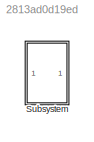
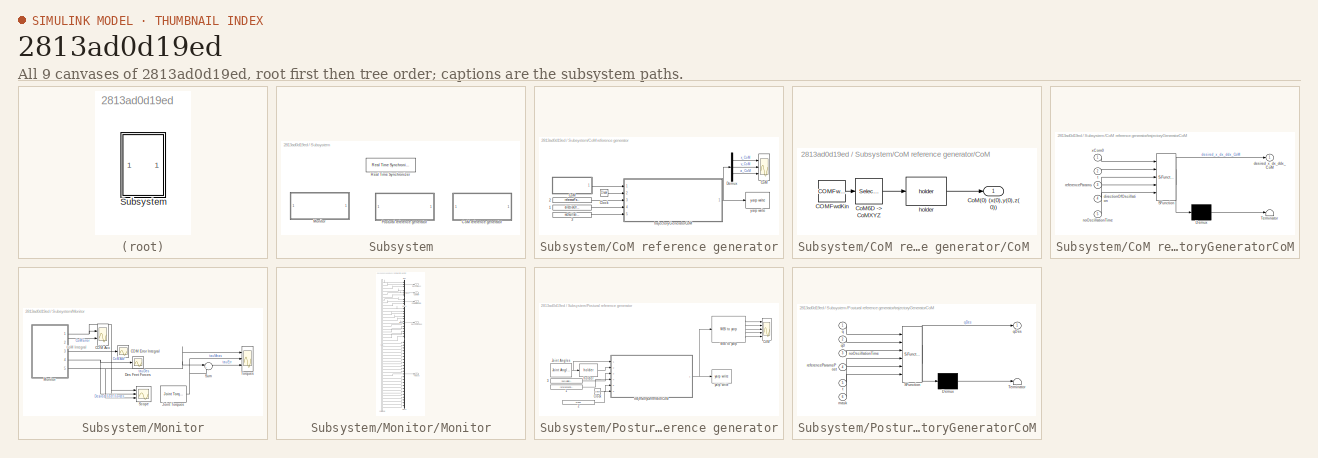
[diagram: thumbnail index - all 9 canvases of the model, root first then tree order]
MODEL slx_2813ad0d19ed
KIND model
CONFIG InitFcn = init_generatorOfReferences;
BLOCK [SubSystem] Subsystem
  Ports = []
  RequestExecContextInheritance = off
BLOCK [SubSystem] Subsystem/CoM reference generator
  Ports = []
  RequestExecContextInheritance = off
BLOCK [Constant] Subsystem/CoM reference generator/ 1
  Value = directionOfOscillation
BLOCK [Constant] Subsystem/CoM reference generator/ 2
  Value = referenceParamsCoM
BLOCK [Constant] Subsystem/CoM reference generator/ 3
  Value = noOscillationTime
BLOCK [Clock] Subsystem/CoM reference generator/Clock
BLOCK [Scope] Subsystem/CoM reference generator/CoM
  Floating = off
  LegendLocations = 0.90006     0.89787    0.064042    0.053744\n0.90006     0.58361    0.064042    0.053744\n0.90006     0.26832    0.064205    0.053744
  LimitDataPoints = off
  NumInputPorts = 3
  Ports = [3]
  ShowLegends = on
  YMax = 5~5~5
  YMin = -5~-5~-5
BLOCK [SubSystem] Subsystem/CoM reference generator/CoM 
  Ports = [0, 1]
  RequestExecContextInheritance = off
BLOCK [Reference] Subsystem/CoM reference generator/CoM /COMFwdKin   REF=WBCLibrary/wholeBodyModel/Forward Kinematics/COMFwdKin 
  Ports = [0, 1]
  SourceBlock = WBCLibrary/wholeBodyModel/Forward Kinematics/COMFwdKin
  SourceType = Center of Mass Forward Kinematics
  localName = localName
  robotName = robotName
BLOCK [Outport] Subsystem/CoM reference generator/CoM /CoM(0) (x(0),y(0),z(0))
  IconDisplay = Port number
BLOCK [Selector] Subsystem/CoM reference generator/CoM /CoM6D -> CoMXYZ
  Indices = [1 2 3]
  InputPortWidth = 7
  Ports = [1, 1]
BLOCK [Reference] Subsystem/CoM reference generator/CoM /holder   REF=WBCLibrary/Utilities/holder

  Ports = [1, 1]
  SourceBlock = WBCLibrary/Utilities/holder
  SourceType = Holder
BLOCK [Demux] Subsystem/CoM reference generator/Demux
  DisplayOption = bar
  Outputs = 3
  Ports = [1, 3]
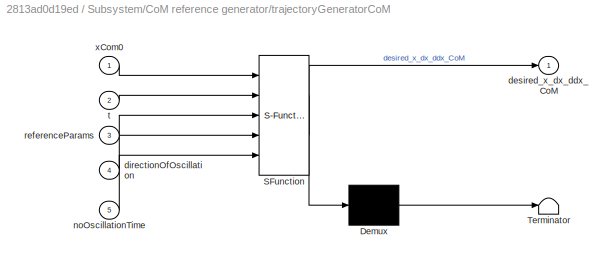
BLOCK [SubSystem] Subsystem/CoM reference generator/trajectoryGeneratorCoM
  ErrorFcn = Stateflow.Translate.translate
  PermitHierarchicalResolution = ExplicitOnly
  Ports = [5, 1]
  RequestExecContextInheritance = off
  SFBlockType = MATLAB Function
  TreatAsAtomicUnit = on
BLOCK [Demux] Subsystem/CoM reference generator/trajectoryGeneratorCoM/ Demux 
  Outputs = 1
  Ports = [1, 1]
BLOCK [S-Function] Subsystem/CoM reference generator/trajectoryGeneratorCoM/ SFunction 
  EnableBusSupport = on
  FunctionName = sf_sfun
  PortCounts = [5 2]
  Ports = [5, 2]
  Tag = Stateflow S-Function generatorOfReferences 1
BLOCK [Terminator] Subsystem/CoM reference generator/trajectoryGeneratorCoM/ Terminator 
BLOCK [Outport] Subsystem/CoM reference generator/trajectoryGeneratorCoM/desired_x_dx_ddx_CoM
  IconDisplay = Port number
BLOCK [Inport] Subsystem/CoM reference generator/trajectoryGeneratorCoM/directionOfOscillation
  IconDisplay = Port number
  Port = 4
BLOCK [Inport] Subsystem/CoM reference generator/trajectoryGeneratorCoM/noOscillationTime
  IconDisplay = Port number
  Port = 5
BLOCK [Inport] Subsystem/CoM reference generator/trajectoryGeneratorCoM/referenceParams
  IconDisplay = Port number
  Port = 3
BLOCK [Inport] Subsystem/CoM reference generator/trajectoryGeneratorCoM/t
  IconDisplay = Port number
  Port = 2
BLOCK [Inport] Subsystem/CoM reference generator/trajectoryGeneratorCoM/xCom0
  IconDisplay = Port number
BLOCK [Reference] Subsystem/CoM reference generator/yarp write  REF=WBCLibrary/Utilities/yarp write
  Ports = [1]
  SourceBlock = WBCLibrary/Utilities/yarp write
  port_name = outputPortCoM
BLOCK [SubSystem] Subsystem/Monitor
  Commented = on
  Ports = []
  RequestExecContextInheritance = off
BLOCK [Scope] Subsystem/Monitor/COM Acc
  DataFormat = StructureWithTime
  Floating = off
  LimitDataPoints = off
  NumInputPorts = 2
  Ports = [2]
  SampleTime = 0
  SaveName = ScopeData5
  ShowLegends = on
  YMax = 0.2~0.04
  YMin = -0.4~-0.02
BLOCK [Scope] Subsystem/Monitor/COM Error Integral
  DataFormat = StructureWithTime
  Floating = off
  NumInputPorts = 1
  Ports = [1]
  SampleTime = 0
  SaveName = ScopeData4
  ShowLegends = off
  YMax = 0.1
  YMin = -0.7
BLOCK [Scope] Subsystem/Monitor/Des Feet Forces
  DataFormat = StructureWithTime
  Floating = off
  NumInputPorts = 1
  Ports = [1]
  SampleTime = 0
  SaveName = ScopeData2
  ShowLegends = off
  TimeRange = 10
  YMax = 120
  YMin = -10
BLOCK [Reference] Subsystem/Monitor/Joint Torques  REF=WBCLibrary/wholeBodyStates/Joint Torques
  Ports = [0, 1]
  SourceBlock = WBCLibrary/wholeBodyStates/Joint Torques
  SourceType = Joint Torques
  localName = localName
  robotName = robotName
BLOCK [SubSystem] Subsystem/Monitor/Monitor
  Ports = [0, 5]
  RequestExecContextInheritance = off
BLOCK [Outport] Subsystem/Monitor/Monitor/COM error
  IconDisplay = Port number
  Port = 2
BLOCK [Outport] Subsystem/Monitor/Monitor/COM error integral
  IconDisplay = Port number
  Port = 3
BLOCK [Outport] Subsystem/Monitor/Monitor/Des COM Acc
  IconDisplay = Port number
BLOCK [Outport] Subsystem/Monitor/Monitor/Des Feet Forces
  IconDisplay = Port number
  Port = 4
BLOCK [Mux] Subsystem/Monitor/Monitor/Mux
  DisplayOption = bar
  Inputs = 3
  Ports = [3, 1]
BLOCK [Mux] Subsystem/Monitor/Monitor/Mux1
  DisplayOption = bar
  Inputs = 3
  Ports = [3, 1]
BLOCK [Mux] Subsystem/Monitor/Monitor/Mux2
  DisplayOption = bar
  Inputs = 12
  Ports = [12, 1]
BLOCK [Mux] Subsystem/Monitor/Monitor/Mux3
  DisplayOption = bar
  Inputs = 23
  Ports = [23, 1]
BLOCK [Mux] Subsystem/Monitor/Monitor/Mux4
  DisplayOption = bar
  Inputs = 3
  Ports = [3, 1]
BLOCK [Outport] Subsystem/Monitor/Monitor/Torques
  IconDisplay = Port number
  Port = 5
BLOCK [Reference] Subsystem/Monitor/Monitor/yarp read  REF=WBCLibrary/Utilities/yarp read
  Ports = [0, 44]
  SourceBlock = WBCLibrary/Utilities/yarp read
  blocking = off
  from = ['/torqueBalancing/monitor:o']
  num = 44
  timestamp = off
  to = '...'
BLOCK [Scope] Subsystem/Monitor/Scope
  Floating = off
  LegendLocations = 0.79652     0.89787     0.15163    0.053744\n0.70508     0.43396     0.24188     0.20132\n0.79807   -0.010438     0.15009      0.3325
  LimitDataPoints = off
  NumInputPorts = 3
  Ports = [3]
  SaveName = ScopeData1
  ShowLegends = on
  YMax = 0.3~160~10
  YMin = -0.4~-20~-20
BLOCK [Sum] Subsystem/Monitor/Sum
  IconShape = round
  InputSameDT = off
  Inputs = |+-
  OutDataTypeStr = Inherit: Inherit via internal rule
  Ports = [2, 1]
  SaturateOnIntegerOverflow = off
BLOCK [Scope] Subsystem/Monitor/Torques
  DataFormat = StructureWithTime
  Floating = off
  LimitDataPoints = off
  NumInputPorts = 3
  Ports = [3]
  SampleTime = 0
  SaveName = ScopeData3
  ShowLegends = off
  YMax = 1~5~5
  YMin = -1~-5~-5
BLOCK [SubSystem] Subsystem/Postural reference generator
  Commented = on
  Ports = []
  RequestExecContextInheritance = off
BLOCK [Constant] Subsystem/Postural reference generator/ 1
  Value = referenceParamsPost
BLOCK [Constant] Subsystem/Postural reference generator/ 2
  Value = mask
BLOCK [Constant] Subsystem/Postural reference generator/ 3
  Value = noOscillationTime
BLOCK [Clock] Subsystem/Postural reference generator/Clock
BLOCK [Scope] Subsystem/Postural reference generator/CoM
  Floating = off
  LegendLocations = 0.88654     0.89488    0.092204      0.0538\n0.88654     0.69054    0.092204    0.070215\n0.88654     0.50258    0.092204    0.070215\n0.88654     0.28185    0.092204     0.10304\n0.88654    0.092859    0.092204     0.10304
  LimitDataPoints = off
  NumInputPorts = 5
  Ports = [5]
  ShowLegends = on
  YMax = 5~5~5~5~5
  YMin = -5~-5~-5~-5~-5
BLOCK [Reference] Subsystem/Postural reference generator/Joint Angles  REF=WBCLibrary/wholeBodyStates/Joint Angles
  Ports = [0, 1]
  SourceBlock = WBCLibrary/wholeBodyStates/Joint Angles
  SourceType = Joint Angles
  localName = localName
  robotName = robotName
BLOCK [Reference] Subsystem/Postural reference generator/WBI to yarp  REF=WBCLibrary/Utilities/WBI to yarp
  Ports = [1, 5]
  SourceBlock = WBCLibrary/Utilities/WBI to yarp
  SourceType = WBI to YARP
BLOCK [Reference] Subsystem/Postural reference generator/holder   REF=WBCLibrary/Utilities/holder

  Ports = [1, 1]
  SourceBlock = WBCLibrary/Utilities/holder
  SourceType = Holder
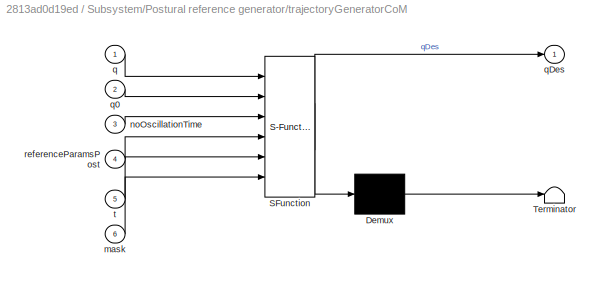
BLOCK [SubSystem] Subsystem/Postural reference generator/trajectoryGeneratorCoM
  ErrorFcn = Stateflow.Translate.translate
  PermitHierarchicalResolution = ExplicitOnly
  Ports = [6, 1]
  RequestExecContextInheritance = off
  SFBlockType = MATLAB Function
  TreatAsAtomicUnit = on
BLOCK [Demux] Subsystem/Postural reference generator/trajectoryGeneratorCoM/ Demux 
  Outputs = 1
  Ports = [1, 1]
BLOCK [S-Function] Subsystem/Postural reference generator/trajectoryGeneratorCoM/ SFunction 
  EnableBusSupport = on
  FunctionName = sf_sfun
  PortCounts = [6 2]
  Ports = [6, 2]
  Tag = Stateflow S-Function generatorOfReferences 2
BLOCK [Terminator] Subsystem/Postural reference generator/trajectoryGeneratorCoM/ Terminator 
BLOCK [Inport] Subsystem/Postural reference generator/trajectoryGeneratorCoM/mask
  IconDisplay = Port number
  Port = 6
BLOCK [Inport] Subsystem/Postural reference generator/trajectoryGeneratorCoM/noOscillationTime
  IconDisplay = Port number
  Port = 3
BLOCK [Inport] Subsystem/Postural reference generator/trajectoryGeneratorCoM/q
  IconDisplay = Port number
BLOCK [Inport] Subsystem/Postural reference generator/trajectoryGeneratorCoM/q0
  IconDisplay = Port number
  Port = 2
BLOCK [Outport] Subsystem/Postural reference generator/trajectoryGeneratorCoM/qDes
  IconDisplay = Port number
BLOCK [Inport] Subsystem/Postural reference generator/trajectoryGeneratorCoM/referenceParamsPost
  IconDisplay = Port number
  Port = 4
BLOCK [Inport] Subsystem/Postural reference generator/trajectoryGeneratorCoM/t
  IconDisplay = Port number
  Port = 5
BLOCK [Reference] Subsystem/Postural reference generator/yarp write  REF=WBCLibrary/Utilities/yarp write
  Ports = [1]
  SourceBlock = WBCLibrary/Utilities/yarp write
  port_name = outputPortPostural
BLOCK [Reference] Subsystem/Real Time Synchronizer  REF=WBCLibrary/Utilities/Real Time Synchronizer
  Ports = []
  Priority = -10
  SourceBlock = WBCLibrary/Utilities/Real Time Synchronizer
  threadPeriod = Ts
ANNOTATION Subsystem/Monitor: CoM Integral
LINE Subsystem/CoM reference generator/ 1:1 -> Subsystem/CoM reference generator/trajectoryGeneratorCoM:4
LINE Subsystem/CoM reference generator/ 2:1 -> Subsystem/CoM reference generator/trajectoryGeneratorCoM:3
LINE Subsystem/CoM reference generator/ 3:1 -> Subsystem/CoM reference generator/trajectoryGeneratorCoM:5
LINE Subsystem/CoM reference generator/Clock:1 -> Subsystem/CoM reference generator/trajectoryGeneratorCoM:2
LINE Subsystem/CoM reference generator/CoM /COMFwdKin :1 -> Subsystem/CoM reference generator/CoM /CoM6D -> CoMXYZ:1
LINE Subsystem/CoM reference generator/CoM /CoM6D -> CoMXYZ:1 -> Subsystem/CoM reference generator/CoM /holder :1
LINE Subsystem/CoM reference generator/CoM /holder :1 -> Subsystem/CoM reference generator/CoM /CoM(0) (x(0),y(0),z(0)):1
LINE Subsystem/CoM reference generator/CoM :1 -> Subsystem/CoM reference generator/trajectoryGeneratorCoM:1
LINE Subsystem/CoM reference generator/Demux:1 -> Subsystem/CoM reference generator/CoM:1
LINE Subsystem/CoM reference generator/Demux:2 -> Subsystem/CoM reference generator/CoM:2
LINE Subsystem/CoM reference generator/Demux:3 -> Subsystem/CoM reference generator/CoM:3
NET Subsystem/CoM reference generator/trajectoryGeneratorCoM:1 -> Subsystem/CoM reference generator/Demux:1, Subsystem/CoM reference generator/yarp write:1
NET Subsystem/Monitor/Joint Torques:1 -> Subsystem/Monitor/Sum:2, Subsystem/Monitor/Torques:2
LINE Subsystem/Monitor/Monitor/Mux1:1 -> Subsystem/Monitor/Monitor/COM error:1
LINE Subsystem/Monitor/Monitor/Mux2:1 -> Subsystem/Monitor/Monitor/Des Feet Forces:1
LINE Subsystem/Monitor/Monitor/Mux3:1 -> Subsystem/Monitor/Monitor/Torques:1
LINE Subsystem/Monitor/Monitor/Mux4:1 -> Subsystem/Monitor/Monitor/COM error integral:1
LINE Subsystem/Monitor/Monitor/Mux:1 -> Subsystem/Monitor/Monitor/Des COM Acc:1
LINE Subsystem/Monitor/Monitor/yarp read:1 -> Subsystem/Monitor/Monitor/Mux:1
LINE Subsystem/Monitor/Monitor/yarp read:10 -> Subsystem/Monitor/Monitor/Mux2:1
LINE Subsystem/Monitor/Monitor/yarp read:11 -> Subsystem/Monitor/Monitor/Mux2:2
LINE Subsystem/Monitor/Monitor/yarp read:12 -> Subsystem/Monitor/Monitor/Mux2:3
LINE Subsystem/Monitor/Monitor/yarp read:13 -> Subsystem/Monitor/Monitor/Mux2:4
LINE Subsystem/Monitor/Monitor/yarp read:14 -> Subsystem/Monitor/Monitor/Mux2:5
LINE Subsystem/Monitor/Monitor/yarp read:15 -> Subsystem/Monitor/Monitor/Mux2:6
LINE Subsystem/Monitor/Monitor/yarp read:16 -> Subsystem/Monitor/Monitor/Mux2:7
LINE Subsystem/Monitor/Monitor/yarp read:17 -> Subsystem/Monitor/Monitor/Mux2:8
LINE Subsystem/Monitor/Monitor/yarp read:18 -> Subsystem/Monitor/Monitor/Mux2:9
LINE Subsystem/Monitor/Monitor/yarp read:19 -> Subsystem/Monitor/Monitor/Mux2:10
LINE Subsystem/Monitor/Monitor/yarp read:2 -> Subsystem/Monitor/Monitor/Mux:2
LINE Subsystem/Monitor/Monitor/yarp read:20 -> Subsystem/Monitor/Monitor/Mux2:11
LINE Subsystem/Monitor/Monitor/yarp read:21 -> Subsystem/Monitor/Monitor/Mux2:12
LINE Subsystem/Monitor/Monitor/yarp read:22 -> Subsystem/Monitor/Monitor/Mux3:1
LINE Subsystem/Monitor/Monitor/yarp read:23 -> Subsystem/Monitor/Monitor/Mux3:2
LINE Subsystem/Monitor/Monitor/yarp read:24 -> Subsystem/Monitor/Monitor/Mux3:3
LINE Subsystem/Monitor/Monitor/yarp read:25 -> Subsystem/Monitor/Monitor/Mux3:4
LINE Subsystem/Monitor/Monitor/yarp read:26 -> Subsystem/Monitor/Monitor/Mux3:5
LINE Subsystem/Monitor/Monitor/yarp read:27 -> Subsystem/Monitor/Monitor/Mux3:6
LINE Subsystem/Monitor/Monitor/yarp read:28 -> Subsystem/Monitor/Monitor/Mux3:7
LINE Subsystem/Monitor/Monitor/yarp read:29 -> Subsystem/Monitor/Monitor/Mux3:8
LINE Subsystem/Monitor/Monitor/yarp read:3 -> Subsystem/Monitor/Monitor/Mux:3
LINE Subsystem/Monitor/Monitor/yarp read:30 -> Subsystem/Monitor/Monitor/Mux3:9
LINE Subsystem/Monitor/Monitor/yarp read:31 -> Subsystem/Monitor/Monitor/Mux3:10
LINE Subsystem/Monitor/Monitor/yarp read:32 -> Subsystem/Monitor/Monitor/Mux3:11
LINE Subsystem/Monitor/Monitor/yarp read:33 -> Subsystem/Monitor/Monitor/Mux3:12
LINE Subsystem/Monitor/Monitor/yarp read:34 -> Subsystem/Monitor/Monitor/Mux3:13
LINE Subsystem/Monitor/Monitor/yarp read:35 -> Subsystem/Monitor/Monitor/Mux3:14
LINE Subsystem/Monitor/Monitor/yarp read:36 -> Subsystem/Monitor/Monitor/Mux3:15
LINE Subsystem/Monitor/Monitor/yarp read:37 -> Subsystem/Monitor/Monitor/Mux3:16
LINE Subsystem/Monitor/Monitor/yarp read:38 -> Subsystem/Monitor/Monitor/Mux3:17
LINE Subsystem/Monitor/Monitor/yarp read:39 -> Subsystem/Monitor/Monitor/Mux3:18
LINE Subsystem/Monitor/Monitor/yarp read:4 -> Subsystem/Monitor/Monitor/Mux1:1
LINE Subsystem/Monitor/Monitor/yarp read:40 -> Subsystem/Monitor/Monitor/Mux3:19
LINE Subsystem/Monitor/Monitor/yarp read:41 -> Subsystem/Monitor/Monitor/Mux3:20
LINE Subsystem/Monitor/Monitor/yarp read:42 -> Subsystem/Monitor/Monitor/Mux3:21
LINE Subsystem/Monitor/Monitor/yarp read:43 -> Subsystem/Monitor/Monitor/Mux3:22
LINE Subsystem/Monitor/Monitor/yarp read:44 -> Subsystem/Monitor/Monitor/Mux3:23
LINE Subsystem/Monitor/Monitor/yarp read:5 -> Subsystem/Monitor/Monitor/Mux1:2
LINE Subsystem/Monitor/Monitor/yarp read:6 -> Subsystem/Monitor/Monitor/Mux1:3
LINE Subsystem/Monitor/Monitor/yarp read:7 -> Subsystem/Monitor/Monitor/Mux4:1
LINE Subsystem/Monitor/Monitor/yarp read:8 -> Subsystem/Monitor/Monitor/Mux4:2
LINE Subsystem/Monitor/Monitor/yarp read:9 -> Subsystem/Monitor/Monitor/Mux4:3
NET Subsystem/Monitor/Monitor:1 -> Subsystem/Monitor/COM Acc:1, Subsystem/Monitor/Scope:1
LINE Subsystem/Monitor/Monitor:2 -> Subsystem/Monitor/COM Acc:2
LINE Subsystem/Monitor/Monitor:3 -> Subsystem/Monitor/COM Error Integral:1
NET Subsystem/Monitor/Monitor:4 -> Subsystem/Monitor/Des Feet Forces:1, Subsystem/Monitor/Scope:2
NET Subsystem/Monitor/Monitor:5 -> Subsystem/Monitor/Scope:3, Subsystem/Monitor/Sum:1, Subsystem/Monitor/Torques:1
LINE Subsystem/Monitor/Sum:1 -> Subsystem/Monitor/Torques:3
LINE Subsystem/Postural reference generator/ 1:1 -> Subsystem/Postural reference generator/trajectoryGeneratorCoM:4
LINE Subsystem/Postural reference generator/ 2:1 -> Subsystem/Postural reference generator/trajectoryGeneratorCoM:6
LINE Subsystem/Postural reference generator/ 3:1 -> Subsystem/Postural reference generator/trajectoryGeneratorCoM:3
LINE Subsystem/Postural reference generator/Clock:1 -> Subsystem/Postural reference generator/trajectoryGeneratorCoM:5
NET Subsystem/Postural reference generator/Joint Angles:1 -> Subsystem/Postural reference generator/holder :1, Subsystem/Postural reference generator/trajectoryGeneratorCoM:1
LINE Subsystem/Postural reference generator/WBI to yarp:1 -> Subsystem/Postural reference generator/CoM:1
LINE Subsystem/Postural reference generator/WBI to yarp:2 -> Subsystem/Postural reference generator/CoM:2
LINE Subsystem/Postural reference generator/WBI to yarp:3 -> Subsystem/Postural reference generator/CoM:3
LINE Subsystem/Postural reference generator/WBI to yarp:4 -> Subsystem/Postural reference generator/CoM:4
LINE Subsystem/Postural reference generator/WBI to yarp:5 -> Subsystem/Postural reference generator/CoM:5
LINE Subsystem/Postural reference generator/holder :1 -> Subsystem/Postural reference generator/trajectoryGeneratorCoM:2
NET Subsystem/Postural reference generator/trajectoryGeneratorCoM:1 -> Subsystem/Postural reference generator/WBI to yarp:1, Subsystem/Postural reference generator/yarp write:1
note: NET lines group one-source signal fan-out (src -> all destinations, sorted); 1:1 wires keep LINE
CHART Subsystem/CoM reference generator/trajectoryGeneratorCoM states=1 transitions=1
  STATE_LABEL 'eML_blk_kernel()'
  STATE_LABEL 'SCRIPT:\nfunction desired_x_dx_ddx_CoM = fcn(xCom0,t,referenceParams,directionOfOscillation,noOscillationTime)\n%#codegen\n\n\nif t > noOscillationTime\n    A = referenceParams(1);\nelse\n    A = 0;\nend\nf = referenceParams(2);\n\nxcomDes    = xCom0 + A*sin(2*pi*f*t)*directionOfOscillation;\n% xcomDes(1) =  xcomDes(1) + 0.01;\nxDcomDes   =         A*2*pi*f*cos(2*pi*f*t)*directionOfOscillation;\nxDDcomDes  =    ...<+109ch>'
CHART Subsystem/Postural reference generator/trajectoryGeneratorCoM states=1 transitions=1
  STATE_LABEL 'eML_blk_kernel()'
  STATE_LABEL 'SCRIPT:\nfunction qDes = fcn(q,q0,noOscillationTime,referenceParamsPost,t,mask)\n%#codegen\n\nqDes = q0;\nif t > noOscillationTime\n    qDes = q0 + referenceParamsPost(1)*sin(referenceParamsPost(2)*(t-noOscillationTime)).*mask;\nend'
